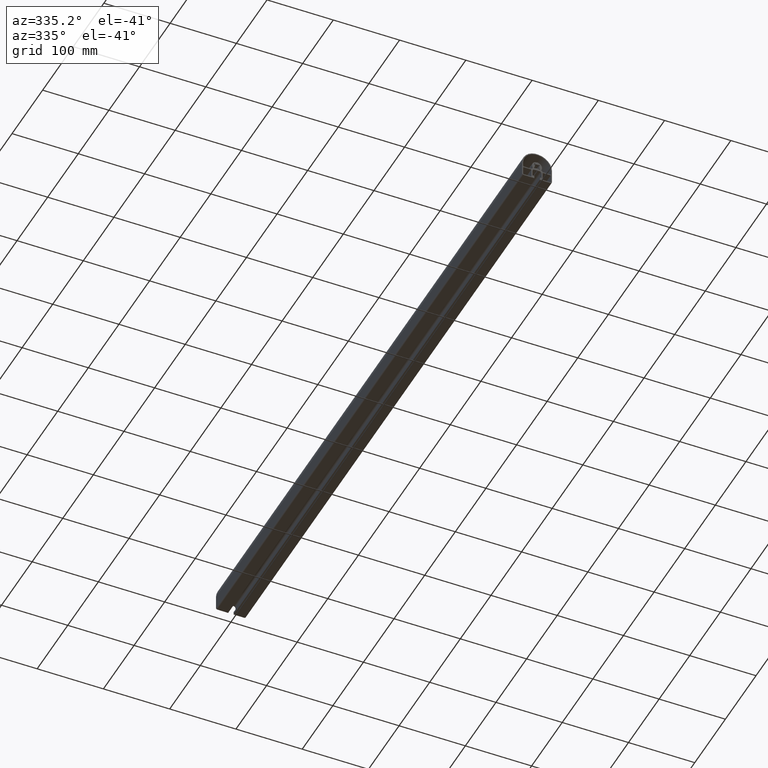
[diagram: clean part render]
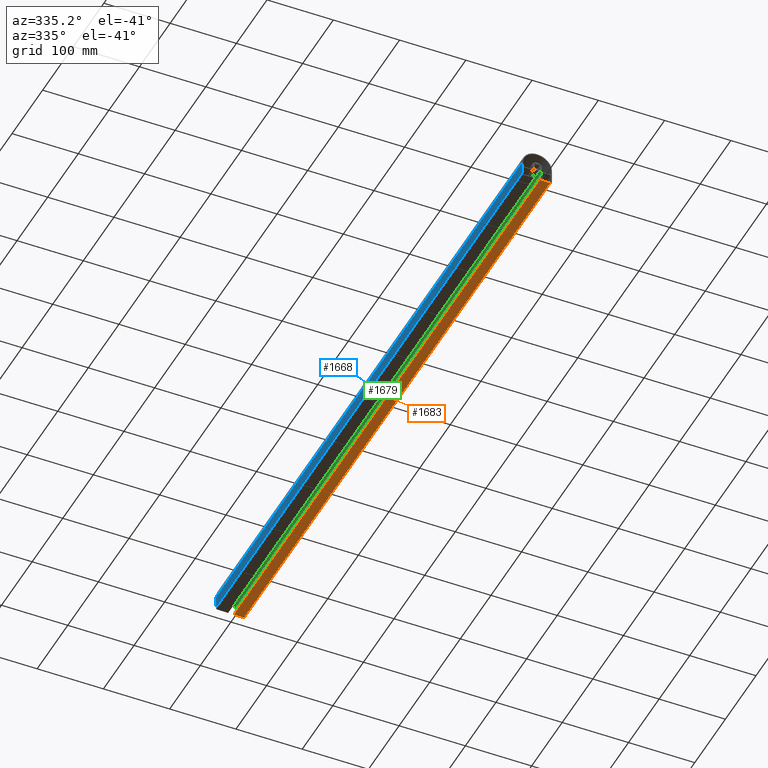
[diagram: same view with three faces highlighted in distinct colors, each labeled with its STEP entity id]
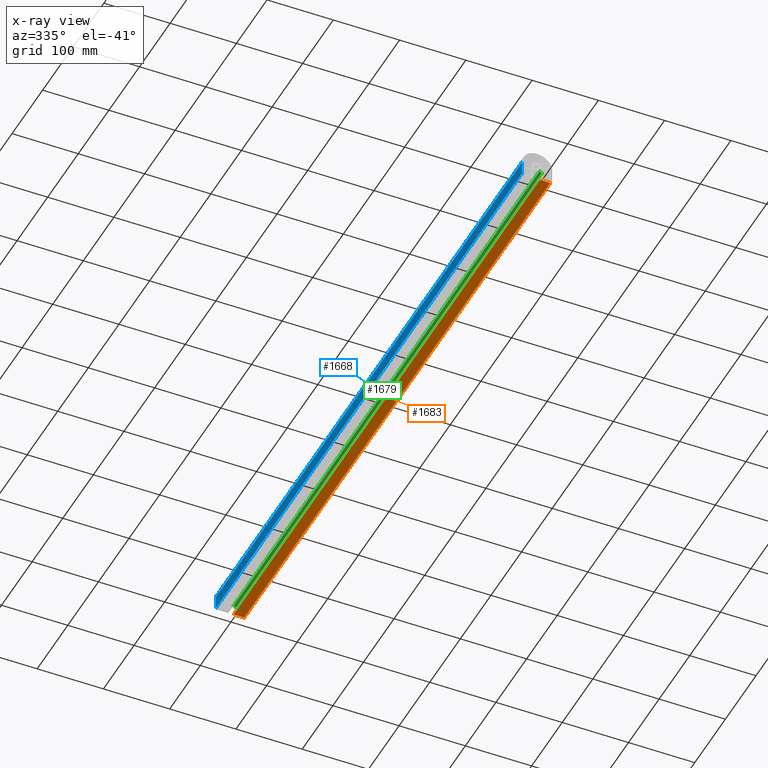
[diagram: x-ray of the same camera — body ghosted, the three highlighted faces saturated]
A machine part, auxiliary view with three faces highlighted in distinct colors.
The next image is the same camera in x-ray (body ghosted, the three faces saturated) — at least one of them is partly hidden behind the body in this view.
Their STEP definitions:

[orange] entity #1683 — the highlighted planar face has unit normal (-0, 0, -1).
#57=PLANE('',#1880);
#141=FACE_OUTER_BOUND('',#226,.T.);
#226=EDGE_LOOP('',(#1378,#1379,#1380,#1381));
#387=LINE('',#2885,#542);
#388=LINE('',#2888,#543);
#389=LINE('',#2890,#544);
#390=LINE('',#2891,#545);
#542=VECTOR('',#2381,10.);
#543=VECTOR('',#2384,10.);
#544=VECTOR('',#2385,10.);
#545=VECTOR('',#2386,10.);
#803=VERTEX_POINT('',#2881);
#804=VERTEX_POINT('',#2883);
#805=VERTEX_POINT('',#2887);
#806=VERTEX_POINT('',#2889);
#1049=EDGE_CURVE('',#803,#804,#387,.T.);
#1050=EDGE_CURVE('',#803,#805,#388,.T.);
#1051=EDGE_CURVE('',#806,#804,#389,.T.);
#1052=EDGE_CURVE('',#805,#806,#390,.T.);
#1378=ORIENTED_EDGE('',*,*,#1050,.F.);
#1379=ORIENTED_EDGE('',*,*,#1049,.T.);
#1380=ORIENTED_EDGE('',*,*,#1051,.F.);
#1381=ORIENTED_EDGE('',*,*,#1052,.F.);
#1683=ADVANCED_FACE('',(#141),#57,.T.);
#1880=AXIS2_PLACEMENT_3D('',#2886,#2382,#2383);
#2381=DIRECTION('',(0.,1.,0.));
#2382=DIRECTION('center_axis',(-5.60275207011616E-16,0.,-1.));
#2383=DIRECTION('ref_axis',(-1.,0.,5.60275207011616E-16));
#2384=DIRECTION('',(1.,0.,-5.60275207011616E-16));
#2385=DIRECTION('',(-1.,0.,5.60275207011616E-16));
#2386=DIRECTION('',(0.,1.,0.));
#2881=CARTESIAN_POINT('',(4.14412342272049,0.,-22.4966734783322));
#2883=CARTESIAN_POINT('',(4.14412342272049,1000.,-22.4966734783322));
#2885=CARTESIAN_POINT('',(4.14412342272049,0.,-22.4966734783322));
#2886=CARTESIAN_POINT('Origin',(19.9966617571842,0.,-22.4966734783322));
#2887=CARTESIAN_POINT('',(19.9966617571842,0.,-22.4966734783322));
#2888=CARTESIAN_POINT('',(4.14412342272049,0.,-22.4966734783322));
#2889=CARTESIAN_POINT('',(19.9966617571842,1000.,-22.4966734783322));
#2890=CARTESIAN_POINT('',(4.14412342272049,1000.,-22.4966734783322));
#2891=CARTESIAN_POINT('',(19.9966617571842,0.,-22.4966734783322));

[blue] entity #1668 — the highlighted planar face has unit normal (-1, 0, 0).
#45=PLANE('',#1859);
#126=FACE_OUTER_BOUND('',#211,.T.);
#211=EDGE_LOOP('',(#1318,#1319,#1320,#1321));
#348=LINE('',#2795,#503);
#349=LINE('',#2798,#504);
#350=LINE('',#2800,#505);
#351=LINE('',#2801,#506);
#503=VECTOR('',#2300,10.);
#504=VECTOR('',#2303,10.);
#505=VECTOR('',#2304,10.);
#506=VECTOR('',#2305,10.);
#772=VERTEX_POINT('',#2789);
#774=VERTEX_POINT('',#2793);
#775=VERTEX_POINT('',#2797);
#776=VERTEX_POINT('',#2799);
#1004=EDGE_CURVE('',#772,#774,#348,.T.);
#1005=EDGE_CURVE('',#772,#775,#349,.T.);
#1006=EDGE_CURVE('',#776,#774,#350,.T.);
#1007=EDGE_CURVE('',#775,#776,#351,.T.);
#1318=ORIENTED_EDGE('',*,*,#1005,.F.);
#1319=ORIENTED_EDGE('',*,*,#1004,.T.);
#1320=ORIENTED_EDGE('',*,*,#1006,.F.);
#1321=ORIENTED_EDGE('',*,*,#1007,.F.);
#1668=ADVANCED_FACE('',(#126),#45,.T.);
#1859=AXIS2_PLACEMENT_3D('',#2796,#2301,#2302);
#2300=DIRECTION('',(0.,1.,0.));
#2301=DIRECTION('center_axis',(-1.,0.,0.));
#2302=DIRECTION('ref_axis',(0.,0.,1.));
#2303=DIRECTION('',(0.,0.,-1.));
#2304=DIRECTION('',(0.,0.,1.));
#2305=DIRECTION('',(0.,1.,0.));
#2789=CARTESIAN_POINT('',(-22.5033265199592,0.,8.52330779761841E-10));
#2793=CARTESIAN_POINT('',(-22.5033265199592,1000.,8.52331538681028E-10));
#2795=CARTESIAN_POINT('',(-22.5033265199592,0.,8.52330779761841E-10));
#2796=CARTESIAN_POINT('Origin',(-22.5033265199592,0.,-19.9900097347138));
#2797=CARTESIAN_POINT('',(-22.5033265199592,0.,-19.9900097347138));
#2798=CARTESIAN_POINT('',(-22.5033265199592,0.,8.52331538681028E-10));
#2799=CARTESIAN_POINT('',(-22.5033265199592,1000.,-19.9900097347138));
#2800=CARTESIAN_POINT('',(-22.5033265199592,1000.,8.52331538681028E-10));
#2801=CARTESIAN_POINT('',(-22.5033265199592,0.,-19.9900097347138));

[green] entity #1679 — the highlighted cylindrical surface (edge-blend (fillet) strip) has radius 3.3 mm, axis along (0, 1, 0).
#137=FACE_OUTER_BOUND('',#222,.T.);
#222=EDGE_LOOP('',(#1362,#1363,#1364,#1365));
#377=LINE('',#2861,#532);
#378=LINE('',#2867,#533);
#532=VECTOR('',#2359,10.);
#533=VECTOR('',#2366,10.);
#639=CIRCLE('',#1875,3.30001547417048);
#640=CIRCLE('',#1876,3.30001547417048);
#795=VERTEX_POINT('',#2857);
#796=VERTEX_POINT('',#2859);
#797=VERTEX_POINT('',#2863);
#798=VERTEX_POINT('',#2865);
#1037=EDGE_CURVE('',#795,#796,#377,.T.);
#1038=EDGE_CURVE('',#795,#797,#639,.T.);
#1039=EDGE_CURVE('',#798,#796,#640,.T.);
#1040=EDGE_CURVE('',#797,#798,#378,.T.);
#1362=ORIENTED_EDGE('',*,*,#1038,.F.);
#1363=ORIENTED_EDGE('',*,*,#1037,.T.);
#1364=ORIENTED_EDGE('',*,*,#1039,.F.);
#1365=ORIENTED_EDGE('',*,*,#1040,.F.);
#1601=CYLINDRICAL_SURFACE('',#1874,3.30001547417048);
#1679=ADVANCED_FACE('',(#137),#1601,.F.);
#1874=AXIS2_PLACEMENT_3D('',#2862,#2360,#2361);
#1875=AXIS2_PLACEMENT_3D('',#2864,#2362,#2363);
#1876=AXIS2_PLACEMENT_3D('',#2866,#2364,#2365);
#2359=DIRECTION('',(0.,1.,0.));
#2360=DIRECTION('center_axis',(0.,1.,0.));
#2361=DIRECTION('ref_axis',(0.,0.,1.));
#2362=DIRECTION('center_axis',(0.,1.,0.));
#2363=DIRECTION('ref_axis',(0.,0.,1.));
#2364=DIRECTION('center_axis',(0.,-1.,0.));
#2365=DIRECTION('ref_axis',(0.,0.,1.));
#2366=DIRECTION('',(0.,1.,0.));
#2857=CARTESIAN_POINT('',(3.60001687133926,0.,-7.20399076909891));
#2859=CARTESIAN_POINT('',(3.60001687133926,1000.,-7.20399076909891));
#2861=CARTESIAN_POINT('',(3.60001687133926,0.,-7.20399076909891));
#2862=CARTESIAN_POINT('Origin',(3.60001687133926,0.,-10.5040062432694));
#2863=CARTESIAN_POINT('',(6.90003234550974,0.,-10.5040062432694));
#2864=CARTESIAN_POINT('Origin',(3.60001687133926,0.,-10.5040062432694));
#2865=CARTESIAN_POINT('',(6.90003234550974,1000.,-10.5040062432694));
#2866=CARTESIAN_POINT('Origin',(3.60001687133926,1000.,-10.5040062432694));
#2867=CARTESIAN_POINT('',(6.90003234550974,0.,-10.5040062432694));